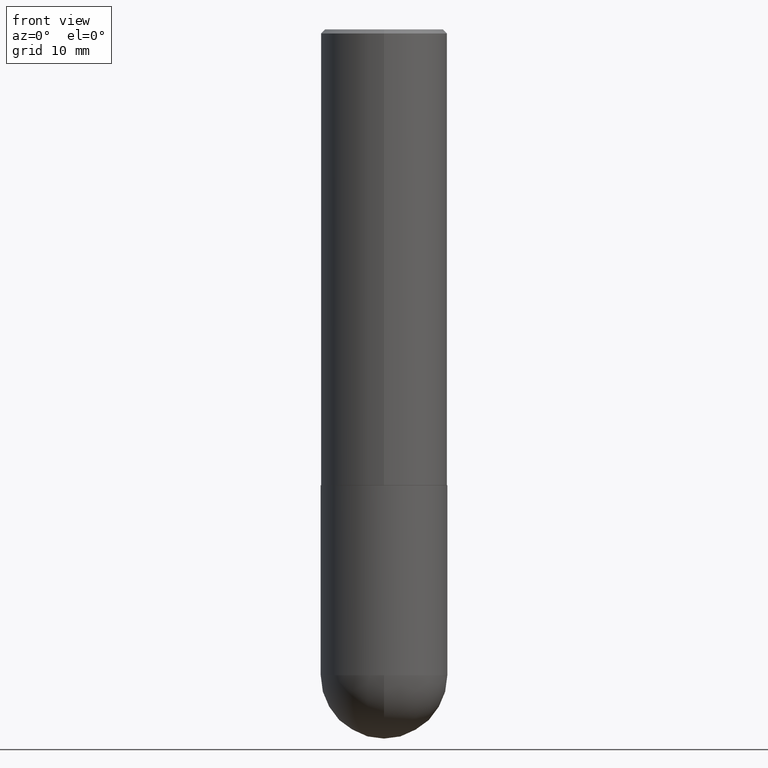
[diagram: clean part render]
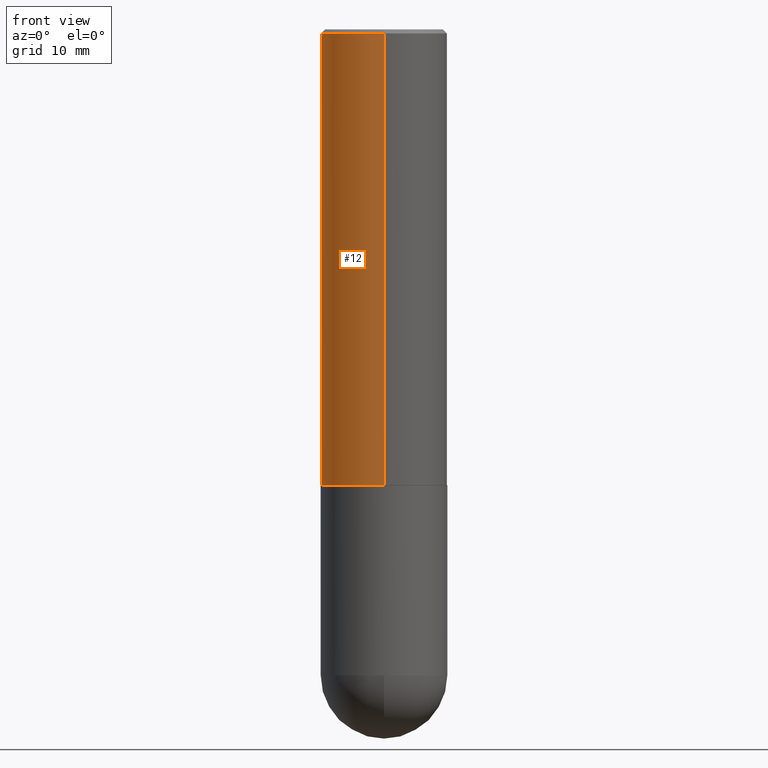
[diagram: same view with one face highlighted and labeled with its STEP entity id]
A machine part, front view. The second image highlights one B-rep face of the part: STEP entity #12.
In plain terms, the highlighted cylindrical surface (partial cylindrical patch) has radius 7.9375 mm, axis along (-0, 0, 1).
Its self-contained STEP definition (entity closure, byte-faithful):
#12 = ADVANCED_FACE ( 'NONE', ( #159 ), #365, .T. ) ;
#19 = AXIS2_PLACEMENT_3D ( 'NONE', #389, #358, #67 ) ;
#24 = DIRECTION ( 'NONE',  ( -2.444541361576187205E-29, 3.492809492310029420E-15, 1.000000000000000000 ) ) ;
#26 = AXIS2_PLACEMENT_3D ( 'NONE', #149, #28, #48 ) ;
#28 = DIRECTION ( 'NONE',  ( -2.444541361576187486E-29, 3.492809492310029420E-15, 1.000000000000000000 ) ) ;
#38 = DIRECTION ( 'NONE',  ( -2.444541361576187205E-29, 3.492809492310029420E-15, 1.000000000000000000 ) ) ;
#48 = DIRECTION ( 'NONE',  ( -6.982962677686265922E-15, -1.000000000000000000, 3.496765431890253764E-15 ) ) ;
#55 = ORIENTED_EDGE ( 'NONE', *, *, #213, .T. ) ;
#67 = DIRECTION ( 'NONE',  ( -6.982962677686266711E-15, -1.000000000000000000, 3.492809492310029814E-15 ) ) ;
#83 = CARTESIAN_POINT ( 'NONE',  ( -2.182175836776905099E-15, -0.3125000000000081601, -2.248999999999998334 ) ) ;
#85 = CIRCLE ( 'NONE', #299, 0.3124999999999998890 ) ;
#92 = VECTOR ( 'NONE', #38, 39.37007874015748143 ) ;
#94 = VERTEX_POINT ( 'NONE', #276 ) ;
#105 = ORIENTED_EDGE ( 'NONE', *, *, #268, .T. ) ;
#113 = CARTESIAN_POINT ( 'NONE',  ( 4.889082723152391857E-31, -6.985618984620081667E-17, -0.02000000000000006981 ) ) ;
#116 = DIRECTION ( 'NONE',  ( -6.982962677686265133E-15, -1.000000000000000000, 3.496765431890258103E-15 ) ) ;
#118 = LINE ( 'NONE', #146, #251 ) ;
#146 = CARTESIAN_POINT ( 'NONE',  ( 2.220446049250313081E-15, 0.3125000000000000555, -1.091502966346884490E-15 ) ) ;
#149 = CARTESIAN_POINT ( 'NONE',  ( 5.497773522184843903E-29, -7.855328548205253930E-15, -2.248999999999999222 ) ) ;
#159 = FACE_OUTER_BOUND ( 'NONE', #255, .T. ) ;
#175 = LINE ( 'NONE', #203, #92 ) ;
#203 = CARTESIAN_POINT ( 'NONE',  ( -2.182175836776958741E-15, -0.3125000000000000555, 1.091502966346884490E-15 ) ) ;
#213 = EDGE_CURVE ( 'NONE', #326, #94, #175, .T. ) ;
#218 = ORIENTED_EDGE ( 'NONE', *, *, #344, .F. ) ;
#236 = VERTEX_POINT ( 'NONE', #377 ) ;
#251 = VECTOR ( 'NONE', #24, 39.37007874015748143 ) ;
#255 = EDGE_LOOP ( 'NONE', ( #385, #105, #55, #218 ) ) ;
#268 = EDGE_CURVE ( 'NONE', #236, #326, #275, .T. ) ;
#275 = CIRCLE ( 'NONE', #26, 0.3125000000000002776 ) ;
#276 = CARTESIAN_POINT ( 'NONE',  ( -2.143905624303602036E-15, -0.3124999999999999445, -0.01999999999999897693 ) ) ;
#281 = VERTEX_POINT ( 'NONE', #343 ) ;
#299 = AXIS2_PLACEMENT_3D ( 'NONE', #113, #410, #116 ) ;
#326 = VERTEX_POINT ( 'NONE', #83 ) ;
#343 = CARTESIAN_POINT ( 'NONE',  ( 2.182175836776957558E-15, 0.3124999999999998335, -0.02000000000000116268 ) ) ;
#344 = EDGE_CURVE ( 'NONE', #281, #94, #85, .T. ) ;
#358 = DIRECTION ( 'NONE',  ( -2.444541361576187486E-29, 3.492809492310029420E-15, 1.000000000000000000 ) ) ;
#365 = CYLINDRICAL_SURFACE ( 'NONE', #19, 0.3125000000000000555 ) ;
#367 = EDGE_CURVE ( 'NONE', #236, #281, #118, .T. ) ;
#377 = CARTESIAN_POINT ( 'NONE',  ( 2.220446049250341480E-15, 0.3124999999999924505, -2.249000000000000554 ) ) ;
#385 = ORIENTED_EDGE ( 'NONE', *, *, #367, .F. ) ;
#389 = CARTESIAN_POINT ( 'NONE',  ( 0.000000000000000000, 0.000000000000000000, 0.000000000000000000 ) ) ;
#410 = DIRECTION ( 'NONE',  ( -2.444541361576187486E-29, 3.492809492310029420E-15, 1.000000000000000000 ) ) ;